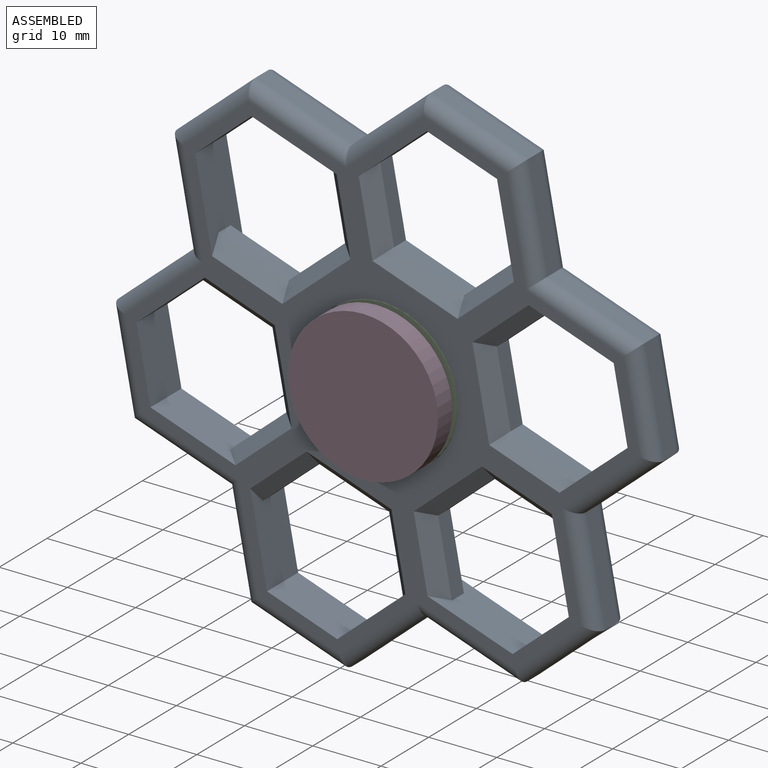
[diagram: assembled view]
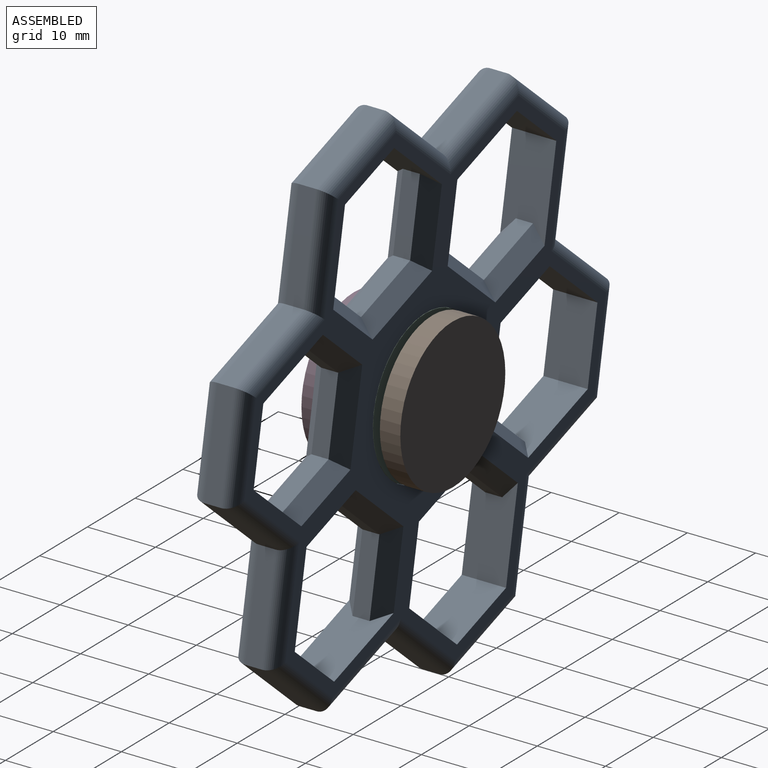
[diagram: assembled view, second angle]
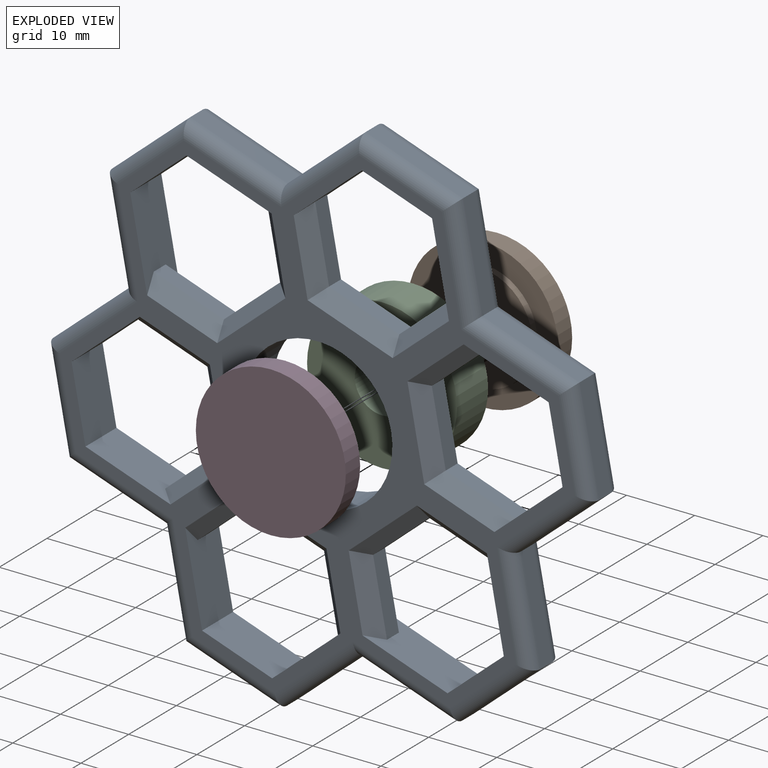
[diagram: exploded view]
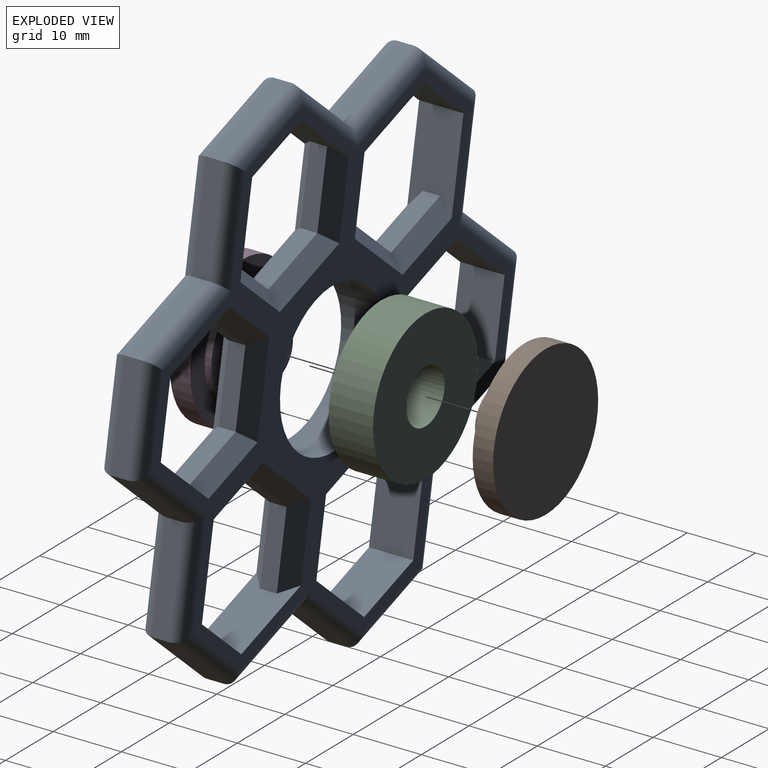
[diagram: exploded view, second angle]
ASSEMBLY  parts=4 mates=4
PART A: 129 faces, bbox 75.6x6.5x78.6 mm
  f0: plane 9.44x5.45mm, normal (0.87,0,0.5), area 27.2mm2, adj f1,f18,f92,f120
  f1: plane 11.44x6.6mm, normal (0.87,0,-0.5), area 75.4mm2, adj f0,f2,f19,f20,f92,f120
  f2: plane 10.9x6.5mm, normal (0,0,-1), area 70.8mm2, adj f1,f3,f19,f20
  f3: plane 11.44x6.6mm, normal (-0.87,0,-0.5), area 75.4mm2, adj f2,f4,f19,f20,f90,f122
  f4: plane 9.44x5.45mm, normal (-0.87,0,0.5), area 27.2mm2, adj f3,f18,f90,f122
  f5: plane 9.44x5.45mm, normal (-0.87,0,-0.5), area 27.2mm2, adj f6,f16,f78,f111
  f6: plane 11.44x6.6mm, normal (-0.87,0,0.5), area 75.4mm2, adj f5,f7,f19,f20,f78,f111
  f7: plane 10.9x6.5mm, normal (0,0,1), area 70.8mm2, adj f6,f8,f19,f20
  f8: plane 11.44x6.6mm, normal (0.87,0,0.5), area 75.4mm2, adj f7,f9,f19,f20,f80,f113
  f9: plane 9.44x5.45mm, normal (0.87,0,-0.5), area 27.2mm2, adj f8,f16,f80,f113
  f10: plane 13.09x7.56mm, normal (0.87,0,0.5), area 37.8mm2, adj f11,f38,f60,f108
  f11: plane 15.12x2.5mm, normal (0,0,1), area 37.8mm2, adj f10,f12,f62,f106
  f12: plane 13.09x7.56mm, normal (-0.87,0,0.5), area 37.8mm2, adj f11,f44,f64,f104
  f13: plane 13.09x7.56mm, normal (-0.87,0,-0.5), area 37.8mm2, adj f14,f55,f71,f95
  f14: plane 15.12x2.5mm, normal (0,0,-1), area 37.8mm2, adj f13,f15,f69,f97
  f15: plane 13.09x7.56mm, normal (0.87,0,-0.5), area 37.8mm2, adj f14,f37,f67,f99
  f16: plane 10.9x2.5mm, normal (0,0,-1), area 27.2mm2, adj f5,f9,f79,f112
  f17: cylinder r=11.05mm len=22.1mm, axis (0,1,0), area 451.3mm2, adj f19,f20
  f18: plane 10.9x2.5mm, normal (0,0,1), area 27.2mm2, adj f0,f4,f91,f121
  f19: plane 74.56x70.97mm, normal (0,-1,0), area 986.2mm2, adj f1,f2,f3,f6,f7,f8,f17,f21
  f20: plane 74.56x70.97mm, normal (0,1,0), area 986.2mm2, adj f1,f2,f3,f6,f7,f8,f17,f21
  f21: plane 13.21x6.5mm, normal (0,0,-1), area 75.4mm2, adj f19,f20,f22,f26,f84,f117
  f22: plane 9.44x6.5mm, normal (-0.87,0,-0.5), area 70.8mm2, adj f19,f20,f21,f23
  f23: plane 11.44x6.6mm, normal (-0.87,0,0.5), area 75.4mm2, adj f19,f20,f22,f24,f86,f119
  f24: plane 10.9x2.5mm, normal (0,0,1), area 27.2mm2, adj f23,f25,f86,f119
  f25: plane 9.44x5.45mm, normal (0.87,0,0.5), area 27.2mm2, adj f24,f26,f85,f118
  f26: plane 9.44x5.45mm, normal (0.87,0,-0.5), area 27.2mm2, adj f21,f25,f84,f117
  f27: plane 11.44x6.6mm, normal (-0.87,0,-0.5), area 75.4mm2, adj f19,f20,f28,f32,f81,f114
  f28: plane 9.44x6.5mm, normal (-0.87,0,0.5), area 70.8mm2, adj f19,f20,f27,f29
  f29: plane 13.21x6.5mm, normal (0,0,1), area 75.4mm2, adj f19,f20,f28,f30,f83,f116
  f30: plane 9.44x5.45mm, normal (0.87,0,0.5), area 27.2mm2, adj f29,f31,f83,f116
  f31: plane 9.44x5.45mm, normal (0.87,0,-0.5), area 27.2mm2, adj f30,f32,f82,f115
  f32: plane 10.9x2.5mm, normal (0,0,-1), area 27.2mm2, adj f27,f31,f81,f114
  f33: plane 13.09x7.56mm, normal (0.87,0,-0.5), area 37.8mm2, adj f34,f37,f63,f103
  f34: plane 13.09x7.56mm, normal (0.87,0,0.5), area 37.8mm2, adj f33,f35,f61,f105
  f35: plane 13.09x7.56mm, normal (0.87,0,-0.5), area 37.8mm2, adj f34,f36,f59,f107
  f36: plane 13.09x7.56mm, normal (0.87,0,0.5), area 37.8mm2, adj f35,f38,f57,f109
  f37: plane 15.12x2.5mm, normal (0,0,-1), area 37.8mm2, adj f15,f33,f65,f101
  f38: plane 15.12x2.5mm, normal (0,0,1), area 37.8mm2, adj f10,f36,f58,f110
  f39: plane 10.9x2.5mm, normal (0,0,1), area 27.2mm2, adj f40,f47,f89,f123
  f40: plane 11.44x6.6mm, normal (0.87,0,0.5), area 75.4mm2, adj f19,f20,f39,f41,f89,f123
  f41: plane 9.44x6.5mm, normal (0.87,0,-0.5), area 70.8mm2, adj f19,f20,f40,f42
  f42: plane 13.21x6.5mm, normal (0,0,-1), area 75.4mm2, adj f19,f20,f41,f43,f87,f125
  f43: plane 9.44x5.45mm, normal (-0.87,0,-0.5), area 27.2mm2, adj f42,f47,f87,f125
  f44: plane 15.12x2.5mm, normal (0,0,1), area 37.8mm2, adj f12,f45,f66,f102
  f45: plane 13.09x7.56mm, normal (-0.87,0,0.5), area 37.8mm2, adj f44,f46,f68,f100
  f46: plane 13.09x7.56mm, normal (-0.87,0,-0.5), area 37.8mm2, adj f45,f53,f70,f98
  f47: plane 9.44x5.45mm, normal (-0.87,0,0.5), area 27.2mm2, adj f39,f43,f88,f124
  f48: plane 9.44x5.45mm, normal (-0.87,0,0.5), area 27.2mm2, adj f49,f56,f77,f128
  f49: plane 13.21x6.5mm, normal (0,0,1), area 75.4mm2, adj f19,f20,f48,f50,f77,f128
  f50: plane 9.44x6.5mm, normal (0.87,0,0.5), area 70.8mm2, adj f19,f20,f49,f51
  f51: plane 11.44x6.6mm, normal (0.87,0,-0.5), area 75.4mm2, adj f19,f20,f50,f52,f75,f126
  f52: plane 10.9x2.5mm, normal (0,0,-1), area 27.2mm2, adj f51,f56,f75,f126
  f53: plane 13.09x7.56mm, normal (-0.87,0,0.5), area 37.8mm2, adj f46,f54,f72,f96
  f54: plane 13.09x7.56mm, normal (-0.87,0,-0.5), area 37.8mm2, adj f53,f55,f74,f94
  f55: plane 15.12x2.5mm, normal (0,0,-1), area 37.8mm2, adj f13,f54,f73,f93
  f56: plane 9.44x5.45mm, normal (-0.87,0,-0.5), area 27.2mm2, adj f48,f52,f76,f127
  f57: cylinder r=2mm len=14.09mm, axis (0.5,0,-0.87), area 44.9mm2, adj f19,f36,f58,f59
  f58: cylinder r=2mm len=16.27mm, axis (1,0,0), area 47.5mm2, adj f19,f38,f57,f60
  f59: cylinder r=2mm len=15.09mm, axis (-0.5,0,-0.87), area 47.5mm2, adj f19,f35,f57,f61
  f60: cylinder r=2mm len=15.09mm, axis (0.5,0,-0.87), area 47.5mm2, adj f10,f19,f58,f62
  f61: cylinder r=2mm len=15.09mm, axis (0.5,0,-0.87), area 47.5mm2, adj f19,f34,f59,f63
  f62: cylinder r=2mm len=15.12mm, axis (1,0,0), area 44.9mm2, adj f11,f19,f60,f64
  f63: cylinder r=2mm len=14.09mm, axis (-0.5,0,-0.87), area 44.9mm2, adj f19,f33,f61,f65
  f64: cylinder r=2mm len=15.09mm, axis (0.5,0,0.87), area 47.5mm2, adj f12,f19,f62,f66
  f65: cylinder r=2mm len=16.27mm, axis (-1,0,0), area 47.5mm2, adj f19,f37,f63,f67
  f66: cylinder r=2mm len=16.27mm, axis (1,0,0), area 47.5mm2, adj f19,f44,f64,f68
  f67: cylinder r=2mm len=15.09mm, axis (-0.5,0,-0.87), area 47.5mm2, adj f15,f19,f65,f69
  f68: cylinder r=2mm len=14.09mm, axis (0.5,0,0.87), area 44.9mm2, adj f19,f45,f66,f70
  f69: cylinder r=2mm len=15.12mm, axis (-1,0,0), area 44.9mm2, adj f14,f19,f67,f71
  f70: cylinder r=2mm len=15.09mm, axis (-0.5,0,0.87), area 47.5mm2, adj f19,f46,f68,f72
  f71: cylinder r=2mm len=15.09mm, axis (-0.5,0,0.87), area 47.5mm2, adj f13,f19,f69,f73
  f72: cylinder r=2mm len=15.09mm, axis (0.5,0,0.87), area 47.5mm2, adj f19,f53,f70,f74
  f73: cylinder r=2mm len=16.27mm, axis (-1,0,0), area 47.5mm2, adj f19,f55,f71,f74
  f74: cylinder r=2mm len=14.09mm, axis (-0.5,0,0.87), area 44.9mm2, adj f19,f54,f72,f73
  f75: plane 12.05x2mm, normal (0,-0.71,-0.71), area 30.8mm2, adj f19,f51,f52,f76
  f76: plane 11.44x7.76mm, normal (-0.61,-0.71,-0.35), area 34.1mm2, adj f19,f56,f75,f77
  f77: plane 9.44x7.76mm, normal (-0.61,-0.71,0.35), area 30.8mm2, adj f19,f48,f49,f76
  f78: plane 11.44x6.6mm, normal (-0.61,-0.71,-0.35), area 30.8mm2, adj f5,f6,f19,f79
  f79: plane 13.21x2mm, normal (0,-0.71,-0.71), area 34.1mm2, adj f16,f19,f78,f80
  f80: plane 11.44x6.6mm, normal (0.61,-0.71,-0.35), area 30.8mm2, adj f8,f9,f19,f79
  f81: plane 12.05x2mm, normal (0,-0.71,-0.71), area 30.8mm2, adj f19,f27,f32,f82
  f82: plane 11.44x7.76mm, normal (0.61,-0.71,-0.35), area 34.1mm2, adj f19,f31,f81,f83
  f83: plane 9.44x7.76mm, normal (0.61,-0.71,0.35), area 30.8mm2, adj f19,f29,f30,f82
  f84: plane 9.44x7.76mm, normal (0.61,-0.71,-0.35), area 30.8mm2, adj f19,f21,f26,f85
  f85: plane 11.44x7.76mm, normal (0.61,-0.71,0.35), area 34.1mm2, adj f19,f25,f84,f86
  f86: plane 12.05x2mm, normal (0,-0.71,0.71), area 30.8mm2, adj f19,f23,f24,f85
  f87: plane 9.44x7.76mm, normal (-0.61,-0.71,-0.35), area 30.8mm2, adj f19,f42,f43,f88
  f88: plane 11.44x7.76mm, normal (-0.61,-0.71,0.35), area 34.1mm2, adj f19,f47,f87,f89
  f89: plane 12.05x2mm, normal (0,-0.71,0.71), area 30.8mm2, adj f19,f39,f40,f88
  f90: plane 11.44x6.6mm, normal (-0.61,-0.71,0.35), area 30.8mm2, adj f3,f4,f19,f91
  f91: plane 13.21x2mm, normal (0,-0.71,0.71), area 34.1mm2, adj f18,f19,f90,f92
  f92: plane 11.44x6.6mm, normal (0.61,-0.71,0.35), area 30.8mm2, adj f0,f1,f19,f91
  f93: cylinder r=2mm len=16.27mm, axis (1,0,0), area 47.5mm2, adj f20,f55,f94,f95
  f94: cylinder r=2mm len=14.09mm, axis (0.5,0,-0.87), area 44.9mm2, adj f20,f54,f93,f96
  f95: cylinder r=2mm len=15.09mm, axis (0.5,0,-0.87), area 47.5mm2, adj f13,f20,f93,f97
  f96: cylinder r=2mm len=15.09mm, axis (-0.5,0,-0.87), area 47.5mm2, adj f20,f53,f94,f98
  f97: cylinder r=2mm len=15.12mm, axis (1,0,0), area 44.9mm2, adj f14,f20,f95,f99
  f98: cylinder r=2mm len=15.09mm, axis (0.5,0,-0.87), area 47.5mm2, adj f20,f46,f96,f100
  f99: cylinder r=2mm len=15.09mm, axis (0.5,0,0.87), area 47.5mm2, adj f15,f20,f97,f101
  f100: cylinder r=2mm len=14.09mm, axis (-0.5,0,-0.87), area 44.9mm2, adj f20,f45,f98,f102
  f101: cylinder r=2mm len=16.27mm, axis (1,0,0), area 47.5mm2, adj f20,f37,f99,f103
  f102: cylinder r=2mm len=16.27mm, axis (-1,0,0), area 47.5mm2, adj f20,f44,f100,f104
  f103: cylinder r=2mm len=14.09mm, axis (0.5,0,0.87), area 44.9mm2, adj f20,f33,f101,f105
  f104: cylinder r=2mm len=15.09mm, axis (-0.5,0,-0.87), area 47.5mm2, adj f12,f20,f102,f106
  f105: cylinder r=2mm len=15.09mm, axis (-0.5,0,0.87), area 47.5mm2, adj f20,f34,f103,f107
  f106: cylinder r=2mm len=15.12mm, axis (-1,0,0), area 44.9mm2, adj f11,f20,f104,f108
  f107: cylinder r=2mm len=15.09mm, axis (0.5,0,0.87), area 47.5mm2, adj f20,f35,f105,f109
  f108: cylinder r=2mm len=15.09mm, axis (-0.5,0,0.87), area 47.5mm2, adj f10,f20,f106,f110
  f109: cylinder r=2mm len=14.09mm, axis (-0.5,0,0.87), area 44.9mm2, adj f20,f36,f107,f110
  f110: cylinder r=2mm len=16.27mm, axis (-1,0,0), area 47.5mm2, adj f20,f38,f108,f109
  f111: plane 11.44x6.6mm, normal (-0.61,0.71,-0.35), area 30.8mm2, adj f5,f6,f20,f112
  f112: plane 13.21x2mm, normal (0,0.71,-0.71), area 34.1mm2, adj f16,f20,f111,f113
  f113: plane 11.44x6.6mm, normal (0.61,0.71,-0.35), area 30.8mm2, adj f8,f9,f20,f112
  f114: plane 12.05x2mm, normal (0,0.71,-0.71), area 30.8mm2, adj f20,f27,f32,f115
  f115: plane 11.44x7.76mm, normal (0.61,0.71,-0.35), area 34.1mm2, adj f20,f31,f114,f116
  f116: plane 9.44x7.76mm, normal (0.61,0.71,0.35), area 30.8mm2, adj f20,f29,f30,f115
  f117: plane 9.44x7.76mm, normal (0.61,0.71,-0.35), area 30.8mm2, adj f20,f21,f26,f118
  f118: plane 11.44x7.76mm, normal (0.61,0.71,0.35), area 34.1mm2, adj f20,f25,f117,f119
  f119: plane 12.05x2mm, normal (0,0.71,0.71), area 30.8mm2, adj f20,f23,f24,f118
  f120: plane 11.44x6.6mm, normal (0.61,0.71,0.35), area 30.8mm2, adj f0,f1,f20,f121
  f121: plane 13.21x2mm, normal (0,0.71,0.71), area 34.1mm2, adj f18,f20,f120,f122
  f122: plane 11.44x6.6mm, normal (-0.61,0.71,0.35), area 30.8mm2, adj f3,f4,f20,f121
  f123: plane 12.05x2mm, normal (0,0.71,0.71), area 30.8mm2, adj f20,f39,f40,f124
  f124: plane 11.44x7.76mm, normal (-0.61,0.71,0.35), area 34.1mm2, adj f20,f47,f123,f125
  f125: plane 9.44x7.76mm, normal (-0.61,0.71,-0.35), area 30.8mm2, adj f20,f42,f43,f124
  f126: plane 12.05x2mm, normal (0,0.71,-0.71), area 30.8mm2, adj f20,f51,f52,f127
  f127: plane 11.44x7.76mm, normal (-0.61,0.71,-0.35), area 34.1mm2, adj f20,f56,f126,f128
  f128: plane 9.44x7.76mm, normal (-0.61,0.71,0.35), area 30.8mm2, adj f20,f48,f49,f127
PART B: 7 faces, bbox 22x22x7.6 mm
  f0: cone r=0mm half-angle=89.2deg, axis (0,0,-1), area 50.3mm2, adj f6
  f1: plane 22x22mm, normal (0,0,1), area 380.1mm2, adj f2
  f2: cylinder r=11mm len=22mm, axis (0,0,1), area 207.3mm2, adj f1,f3
  f3: plane 22x22mm, normal (0,0,-1), area 179.1mm2, adj f2,f4
  f4: cylinder r=8mm len=16mm, axis (0,0,1), area 50.3mm2, adj f3,f5
  f5: plane 16x16mm, normal (0,0,-1), area 150.8mm2, adj f4,f6
  f6: cylinder r=4mm len=8mm, axis (0,0,1), area 89.4mm2, adj f0,f5
PART C: 4 faces, bbox 22x6.5x22 mm
  f0: cylinder r=4mm len=8mm, axis (0,1,0), area 163.4mm2, adj f2,f3
  f1: cylinder r=11mm len=22mm, axis (0,1,0), area 449.2mm2, adj f2,f3
  f2: plane 22x22mm, normal (0,-1,0), area 329.9mm2, adj f0,f1
  f3: plane 22x22mm, normal (0,1,0), area 329.9mm2, adj f0,f1
PART D: same geometry as B
PLACE A rot(axis=(0,1,0),19.2deg) t=(-1.22,2.76,0.34)mm
PLACE B rot(axis=(-1,0,0),90deg) t=(112.62,-7.18,0.34)mm
PLACE C t=(-95.88,2.76,-9.43)mm fixed
PLACE D rot(axis=(1,0,0),90deg) t=(112.62,6.2,0.34)mm
MATE planar A.f20 <-> C.f0  axis (0,1,0) through (-5.86,2.76,15.82)mm
MATE cylindrical C.f0 <-> A.f17  axis (0,1,0) through (-1.22,2.76,0.34)mm
MATE cylindrical D.f0 <-> C.f0  axis (0,-1,0) through (-1.22,-3.74,0.34)mm
MATE cylindrical B.f0 <-> C.f0  axis (0,1,0) through (-1.22,2.76,0.34)mm
